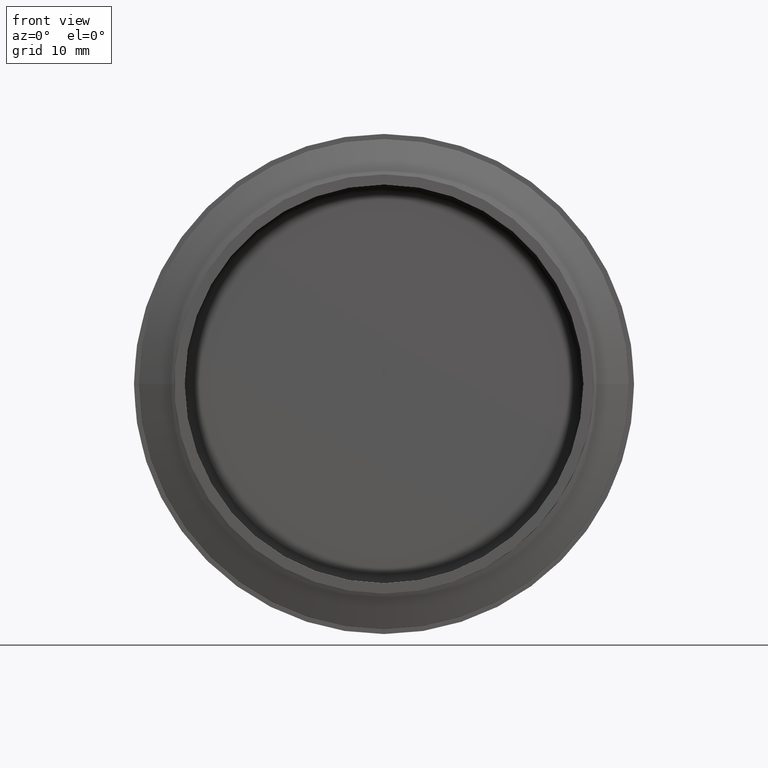
[diagram: clean part render]
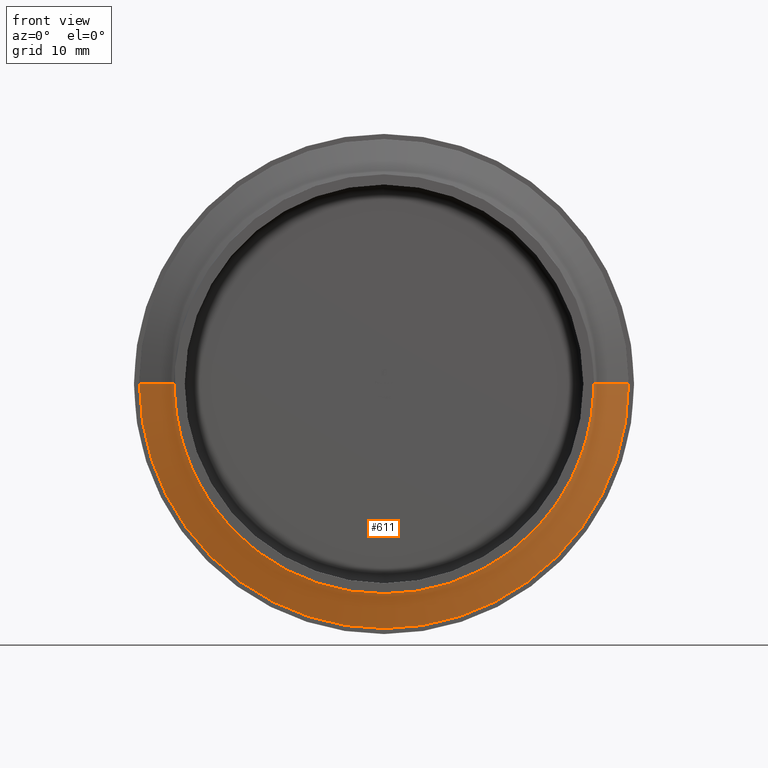
[diagram: same view with one face highlighted and labeled with its STEP entity id]
A machine part, front view. The second image highlights one B-rep face of the part: STEP entity #611.
In plain terms, the highlighted conical surface has half-angle 70.339 deg.
Its self-contained STEP definition (entity closure, byte-faithful):
#538 = DIRECTION ( 'NONE',  ( 1.000000000000000000, 1.046703436437978179E-14, 0.000000000000000000 ) ) ;
#611 = ADVANCED_FACE ( 'NONE', ( #11188 ), #3553, .T. ) ;
#719 = ORIENTED_EDGE ( 'NONE', *, *, #8722, .T. ) ;
#2042 = DIRECTION ( 'NONE',  ( -1.047444401652940007E-14, 1.000000000000000000, 0.000000000000000000 ) ) ;
#2219 = CARTESIAN_POINT ( 'NONE',  ( -23.61682275238645445, 2.502915023604210365, 0.000000000000000000 ) ) ;
#2370 = EDGE_CURVE ( 'NONE', #11345, #2973, #4442, .T. ) ;
#2445 = EDGE_LOOP ( 'NONE', ( #4673, #3416, #10927, #719, #10245 ) ) ;
#2973 = VERTEX_POINT ( 'NONE', #10298 ) ;
#3136 = DIRECTION ( 'NONE',  ( -0.9416995279065809576, 0.3364550477263235639, 0.000000000000000000 ) ) ;
#3416 = ORIENTED_EDGE ( 'NONE', *, *, #7548, .T. ) ;
#3553 = CONICAL_SURFACE ( 'NONE', #4558, 20.25000000000009948, 1.227646392833293243 ) ;
#3747 = LINE ( 'NONE', #7161, #4522 ) ;
#3847 = DIRECTION ( 'NONE',  ( -1.047444401652940007E-14, 1.000000000000000000, 0.000000000000000000 ) ) ;
#4196 = CARTESIAN_POINT ( 'NONE',  ( -1.361677722148599708E-14, 1.299999999999787770, 0.000000000000000000 ) ) ;
#4291 = VERTEX_POINT ( 'NONE', #8159 ) ;
#4442 = CIRCLE ( 'NONE', #7940, 20.25000000000000355 ) ;
#4522 = VECTOR ( 'NONE', #3136, 1000.000000000000114 ) ;
#4558 = AXIS2_PLACEMENT_3D ( 'NONE', #4196, #6211, #8025 ) ;
#4673 = ORIENTED_EDGE ( 'NONE', *, *, #9817, .F. ) ;
#4839 = DIRECTION ( 'NONE',  ( 0.9416995279065738522, 0.3364550477263433259, 1.153249312609363662E-16 ) ) ;
#5118 = LINE ( 'NONE', #7728, #7421 ) ;
#5748 = CARTESIAN_POINT ( 'NONE',  ( -4.622231866529366047E-30, 1.299999999999753131, -20.25000000000000355 ) ) ;
#6211 = DIRECTION ( 'NONE',  ( -1.047444401652940007E-14, 1.000000000000000000, 0.000000000000000000 ) ) ;
#6728 = AXIS2_PLACEMENT_3D ( 'NONE', #11156, #8321, #538 ) ;
#6817 = CARTESIAN_POINT ( 'NONE',  ( 20.24999999999998934, 1.299999999999965183, 2.686068203623716789E-15 ) ) ;
#7161 = CARTESIAN_POINT ( 'NONE',  ( -20.25000000000011369, 1.299999999999575717, 0.000000000000000000 ) ) ;
#7421 = VECTOR ( 'NONE', #4839, 1000.000000000000000 ) ;
#7440 = EDGE_CURVE ( 'NONE', #9896, #4291, #10643, .T. ) ;
#7548 = EDGE_CURVE ( 'NONE', #11012, #11345, #9440, .T. ) ;
#7728 = CARTESIAN_POINT ( 'NONE',  ( 20.25000000000008882, 1.300000000000000044, 2.479909768273402527E-15 ) ) ;
#7927 = DIRECTION ( 'NONE',  ( -1.000000000000000000, -1.047258987348961069E-14, 0.000000000000000000 ) ) ;
#7940 = AXIS2_PLACEMENT_3D ( 'NONE', #8797, #2042, #7927 ) ;
#8025 = DIRECTION ( 'NONE',  ( -1.000000000000000000, -1.047258987348956178E-14, 0.000000000000000000 ) ) ;
#8159 = CARTESIAN_POINT ( 'NONE',  ( 23.61682275238640116, 2.502915023604704636, 2.892226638974042094E-15 ) ) ;
#8321 = DIRECTION ( 'NONE',  ( 1.047444401652940007E-14, -1.000000000000000000, -0.000000000000000000 ) ) ;
#8491 = DIRECTION ( 'NONE',  ( -1.000000000000000000, -1.047258987348961069E-14, 0.000000000000000000 ) ) ;
#8722 = EDGE_CURVE ( 'NONE', #2973, #9896, #3747, .T. ) ;
#8797 = CARTESIAN_POINT ( 'NONE',  ( -1.361677722148563420E-14, 1.299999999999753131, 0.000000000000000000 ) ) ;
#9440 = CIRCLE ( 'NONE', #10429, 20.25000000000000355 ) ;
#9722 = CARTESIAN_POINT ( 'NONE',  ( -1.361677722148563420E-14, 1.299999999999753131, 0.000000000000000000 ) ) ;
#9817 = EDGE_CURVE ( 'NONE', #11012, #4291, #5118, .T. ) ;
#9896 = VERTEX_POINT ( 'NONE', #2219 ) ;
#10245 = ORIENTED_EDGE ( 'NONE', *, *, #7440, .T. ) ;
#10298 = CARTESIAN_POINT ( 'NONE',  ( -20.25000000000001776, 1.299999999999541078, 0.000000000000000000 ) ) ;
#10429 = AXIS2_PLACEMENT_3D ( 'NONE', #9722, #3847, #8491 ) ;
#10643 = CIRCLE ( 'NONE', #6728, 23.61682275238642603 ) ;
#10927 = ORIENTED_EDGE ( 'NONE', *, *, #2370, .T. ) ;
#11012 = VERTEX_POINT ( 'NONE', #6817 ) ;
#11156 = CARTESIAN_POINT ( 'NONE',  ( -2.621664329287525063E-14, 2.502915023604457279, 0.000000000000000000 ) ) ;
#11188 = FACE_OUTER_BOUND ( 'NONE', #2445, .T. ) ;
#11345 = VERTEX_POINT ( 'NONE', #5748 ) ;